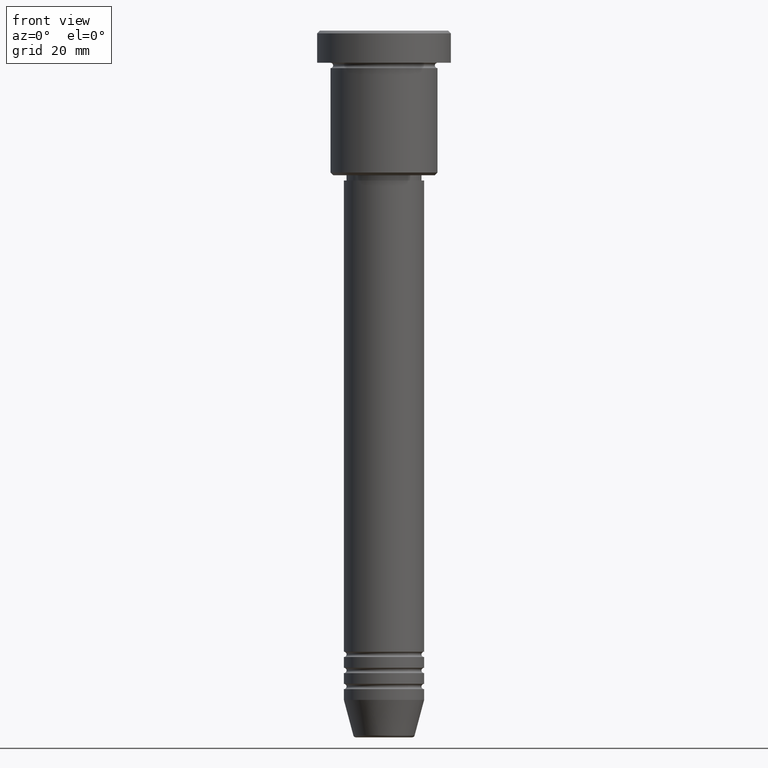
[diagram: clean part render]
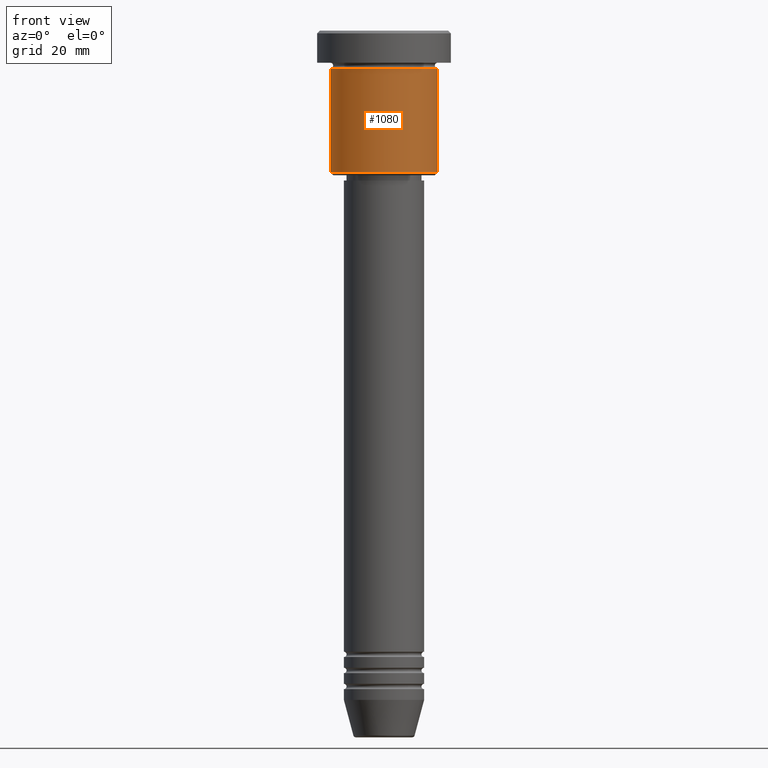
[diagram: same view with one face highlighted and labeled with its STEP entity id]
A machine part, front view. The second image highlights one B-rep face of the part: STEP entity #1080.
In plain terms, the highlighted cylindrical surface (partial cylindrical patch) has radius 10 mm, axis along (-0, -0, 1).
Its self-contained STEP definition (entity closure, byte-faithful):
#52 = VERTEX_POINT ( 'NONE', #1095 ) ;
#73 = CARTESIAN_POINT ( 'NONE',  ( 0.000000000000000000, 0.000000000000000000, 0.000000000000000000 ) ) ;
#84 = VECTOR ( 'NONE', #945, 1000.000000000000000 ) ;
#92 = CARTESIAN_POINT ( 'NONE',  ( 10.00000000000000000, 0.000000000000000000, -6.999999999999996447 ) ) ;
#135 = DIRECTION ( 'NONE',  ( 1.000000000000000000, 0.000000000000000000, 0.000000000000000000 ) ) ;
#145 = DIRECTION ( 'NONE',  ( -0.000000000000000000, -0.000000000000000000, 1.000000000000000000 ) ) ;
#184 = VERTEX_POINT ( 'NONE', #743 ) ;
#204 = EDGE_CURVE ( 'NONE', #434, #52, #290, .T. ) ;
#290 = CIRCLE ( 'NONE', #950, 10.00000000000000000 ) ;
#306 = CARTESIAN_POINT ( 'NONE',  ( 10.00000000000000000, 0.000000000000000000, 0.000000000000000000 ) ) ;
#344 = ORIENTED_EDGE ( 'NONE', *, *, #807, .T. ) ;
#355 = DIRECTION ( 'NONE',  ( -0.000000000000000000, -0.000000000000000000, 1.000000000000000000 ) ) ;
#385 = EDGE_CURVE ( 'NONE', #184, #655, #531, .T. ) ;
#428 = CARTESIAN_POINT ( 'NONE',  ( -10.00000000000000000, 1.224646799147353256E-15, -26.50000000000000000 ) ) ;
#434 = VERTEX_POINT ( 'NONE', #428 ) ;
#441 = FACE_OUTER_BOUND ( 'NONE', #1097, .T. ) ;
#531 = CIRCLE ( 'NONE', #1109, 10.00000000000000000 ) ;
#590 = ORIENTED_EDGE ( 'NONE', *, *, #385, .F. ) ;
#655 = VERTEX_POINT ( 'NONE', #92 ) ;
#665 = DIRECTION ( 'NONE',  ( -0.000000000000000000, -0.000000000000000000, 1.000000000000000000 ) ) ;
#672 = ORIENTED_EDGE ( 'NONE', *, *, #204, .T. ) ;
#743 = CARTESIAN_POINT ( 'NONE',  ( -10.00000000000000000, 1.224646799147353256E-15, -6.999999999999996447 ) ) ;
#807 = EDGE_CURVE ( 'NONE', #52, #655, #942, .T. ) ;
#845 = DIRECTION ( 'NONE',  ( -0.000000000000000000, -0.000000000000000000, 1.000000000000000000 ) ) ;
#888 = ORIENTED_EDGE ( 'NONE', *, *, #948, .F. ) ;
#895 = DIRECTION ( 'NONE',  ( 1.000000000000000000, 0.000000000000000000, 0.000000000000000000 ) ) ;
#922 = CARTESIAN_POINT ( 'NONE',  ( 0.000000000000000000, 0.000000000000000000, -26.50000000000000000 ) ) ;
#942 = LINE ( 'NONE', #306, #1075 ) ;
#945 = DIRECTION ( 'NONE',  ( -0.000000000000000000, -0.000000000000000000, 1.000000000000000000 ) ) ;
#948 = EDGE_CURVE ( 'NONE', #434, #184, #1063, .T. ) ;
#950 = AXIS2_PLACEMENT_3D ( 'NONE', #922, #145, #1048 ) ;
#966 = CARTESIAN_POINT ( 'NONE',  ( -10.00000000000000000, 1.224646799147353256E-15, 0.000000000000000000 ) ) ;
#1048 = DIRECTION ( 'NONE',  ( -1.000000000000000000, 0.000000000000000000, 0.000000000000000000 ) ) ;
#1063 = LINE ( 'NONE', #966, #84 ) ;
#1075 = VECTOR ( 'NONE', #665, 1000.000000000000000 ) ;
#1080 = ADVANCED_FACE ( 'NONE', ( #441 ), #1176, .T. ) ;
#1095 = CARTESIAN_POINT ( 'NONE',  ( 10.00000000000000000, 0.000000000000000000, -26.50000000000000000 ) ) ;
#1097 = EDGE_LOOP ( 'NONE', ( #888, #672, #344, #590 ) ) ;
#1109 = AXIS2_PLACEMENT_3D ( 'NONE', #1115, #845, #135 ) ;
#1111 = AXIS2_PLACEMENT_3D ( 'NONE', #73, #355, #895 ) ;
#1115 = CARTESIAN_POINT ( 'NONE',  ( 0.000000000000000000, 0.000000000000000000, -6.999999999999996447 ) ) ;
#1176 = CYLINDRICAL_SURFACE ( 'NONE', #1111, 10.00000000000000000 ) ;